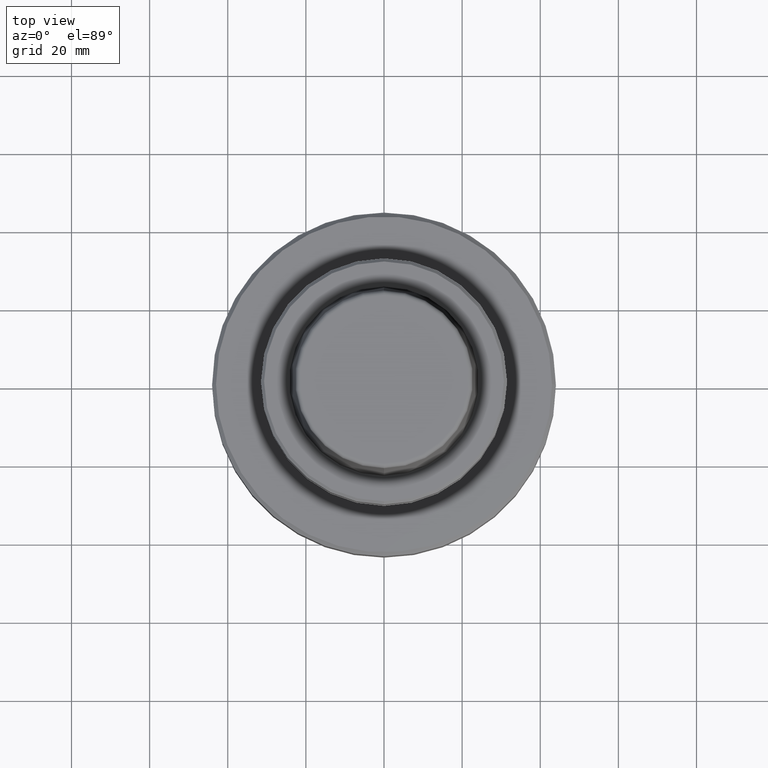
[diagram: clean part render]
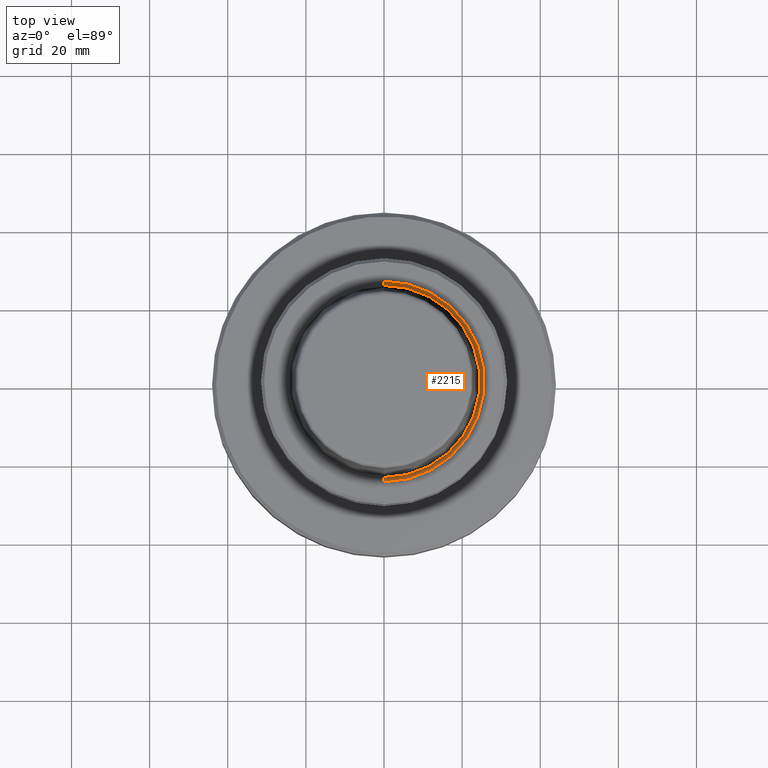
[diagram: same view with one face highlighted and labeled with its STEP entity id]
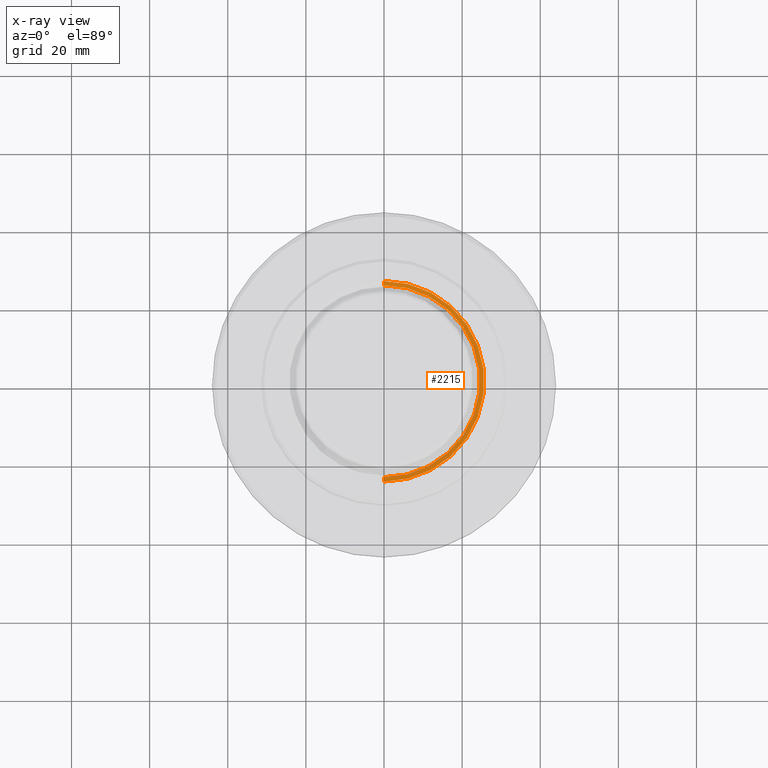
[diagram: x-ray of the same camera — body ghosted, the highlighted face saturated]
A machine part, top view. The second image highlights one B-rep face of the part: STEP entity #2215.
The next image is the same camera in x-ray: the body ghosted, the highlighted face saturated — about 0% of this face is hidden behind the body in this view.
In plain terms, the highlighted conical surface has half-angle 80 deg.
Its self-contained STEP definition (entity closure, byte-faithful):
#110 = AXIS2_PLACEMENT_3D ( 'NONE', #2421, #781, #2707 ) ;
#200 = ORIENTED_EDGE ( 'NONE', *, *, #1236, .F. ) ;
#223 = LINE ( 'NONE', #3435, #3078 ) ;
#376 = CIRCLE ( 'NONE', #1393, 25.67674956203541800 ) ;
#454 = CARTESIAN_POINT ( 'NONE',  ( 0.0000000000000000000, -1.107747922732671300E-016, -1.190714193910480400E-011 ) ) ;
#456 = CARTESIAN_POINT ( 'NONE',  ( 3.078207194287538400E-015, 24.59418890660233000, -0.1908846518197116200 ) ) ;
#469 = CARTESIAN_POINT ( 'NONE',  ( 3.144494916365487700E-015, 25.67674956203541800, -1.190717642174087800E-011 ) ) ;
#516 = ORIENTED_EDGE ( 'NONE', *, *, #3381, .T. ) ;
#694 = DIRECTION ( 'NONE',  ( -0.0000000000000000000, 1.342951762274862300E-018, 1.000000000000000000 ) ) ;
#729 = DIRECTION ( 'NONE',  ( 0.0000000000000000000, -0.9848077530119728800, 0.1736481776682638800 ) ) ;
#781 = DIRECTION ( 'NONE',  ( -0.0000000000000000000, 1.342951762274862300E-018, 1.000000000000000000 ) ) ;
#1193 = VERTEX_POINT ( 'NONE', #469 ) ;
#1236 = EDGE_CURVE ( 'NONE', #1397, #1193, #223, .T. ) ;
#1238 = ORIENTED_EDGE ( 'NONE', *, *, #2446, .T. ) ;
#1393 = AXIS2_PLACEMENT_3D ( 'NONE', #2329, #694, #2612 ) ;
#1397 = VERTEX_POINT ( 'NONE', #456 ) ;
#1539 = EDGE_LOOP ( 'NONE', ( #200, #1837, #1238, #516 ) ) ;
#1578 = DIRECTION ( 'NONE',  ( 0.0000000000000000000, -1.000000000000000000, 1.342951762261441800E-018 ) ) ;
#1795 = DIRECTION ( 'NONE',  ( 1.206041662501609700E-016, 0.9848077530119728800, 0.1736481776682638800 ) ) ;
#1837 = ORIENTED_EDGE ( 'NONE', *, *, #2533, .F. ) ;
#1850 = DIRECTION ( 'NONE',  ( -0.0000000000000000000, 1.342951762274862300E-018, 1.000000000000000000 ) ) ;
#2032 = VECTOR ( 'NONE', #729, 1000.000000000000200 ) ;
#2077 = FACE_OUTER_BOUND ( 'NONE', #1539, .T. ) ;
#2104 = CARTESIAN_POINT ( 'NONE',  ( 0.0000000000000000000, -25.67674956203541800, -1.190710745646873000E-011 ) ) ;
#2122 = LINE ( 'NONE', #2104, #2032 ) ;
#2215 = ADVANCED_FACE ( 'NONE', ( #2077 ), #3373, .F. ) ;
#2222 = VERTEX_POINT ( 'NONE', #2686 ) ;
#2329 = CARTESIAN_POINT ( 'NONE',  ( 0.0000000000000000000, -1.107747922732671300E-016, -1.190714193910480400E-011 ) ) ;
#2421 = CARTESIAN_POINT ( 'NONE',  ( 0.0000000000000000000, -1.110311411528036500E-016, -0.1908846518197115900 ) ) ;
#2446 = EDGE_CURVE ( 'NONE', #3115, #2222, #2122, .T. ) ;
#2533 = EDGE_CURVE ( 'NONE', #3115, #1397, #3147, .T. ) ;
#2612 = DIRECTION ( 'NONE',  ( 0.0000000000000000000, -1.000000000000000000, 1.342951762261441800E-018 ) ) ;
#2686 = CARTESIAN_POINT ( 'NONE',  ( 0.0000000000000000000, -25.67674956203541800, -1.190710745646873000E-011 ) ) ;
#2707 = DIRECTION ( 'NONE',  ( 0.0000000000000000000, -1.000000000000000000, 1.102091815878556400E-018 ) ) ;
#3028 = CARTESIAN_POINT ( 'NONE',  ( 0.0000000000000000000, -24.59418890660233000, -0.1908846518197115600 ) ) ;
#3078 = VECTOR ( 'NONE', #1795, 1000.000000000000200 ) ;
#3115 = VERTEX_POINT ( 'NONE', #3028 ) ;
#3147 = CIRCLE ( 'NONE', #110, 24.59418890660233000 ) ;
#3373 = CONICAL_SURFACE ( 'NONE', #3396, 25.67674956203541800, 1.396263401594109600 ) ;
#3381 = EDGE_CURVE ( 'NONE', #2222, #1193, #376, .T. ) ;
#3396 = AXIS2_PLACEMENT_3D ( 'NONE', #454, #1850, #1578 ) ;
#3435 = CARTESIAN_POINT ( 'NONE',  ( 3.144494916365487700E-015, 25.67674956203541800, -1.190717642174087800E-011 ) ) ;